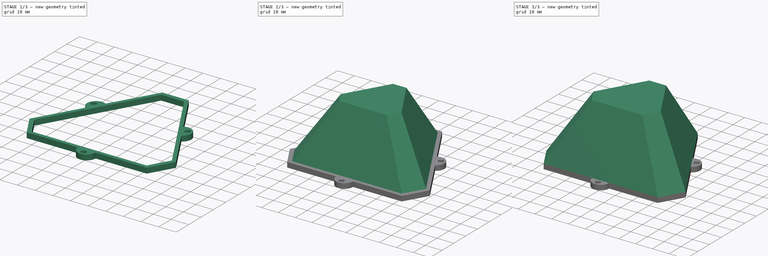
[diagram: build sequence overview — one tinted view per stage of 3, left to right]
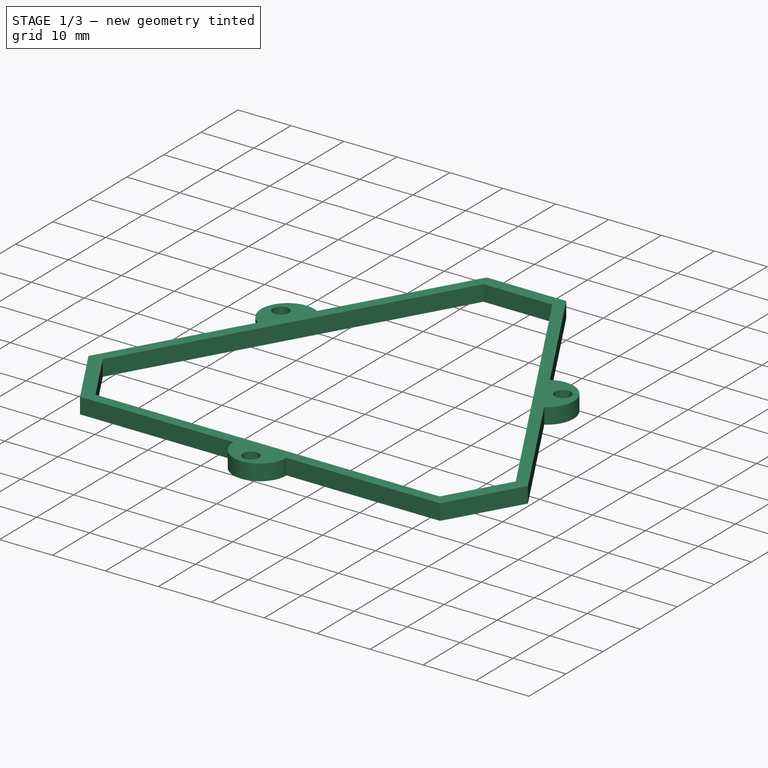
[diagram: stage 1 of 3 — iso view after this stage's code; geometry added in this stage tinted green]
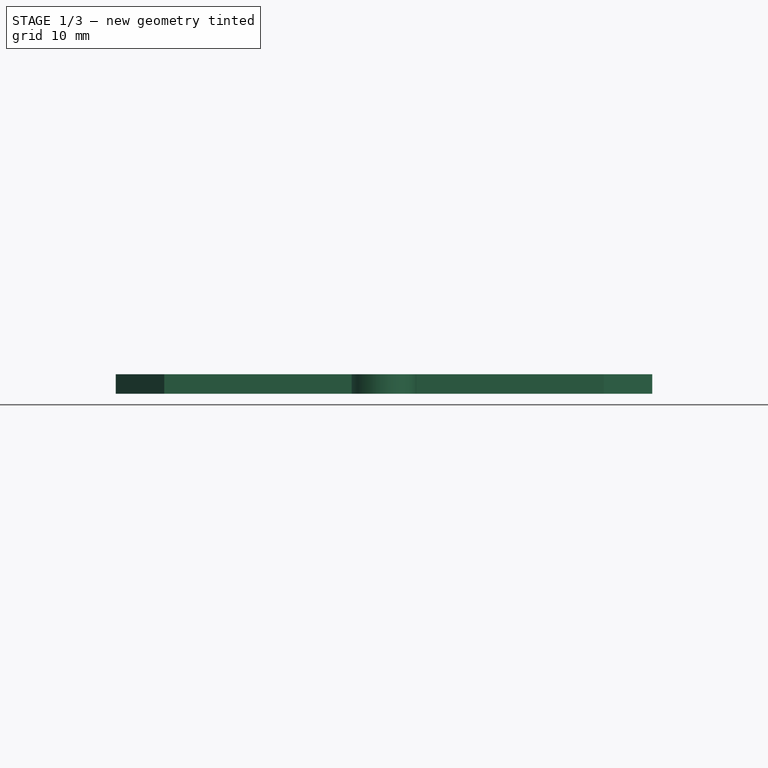
[diagram: stage 1 of 3 — front view after this stage's code; geometry added in this stage tinted green]
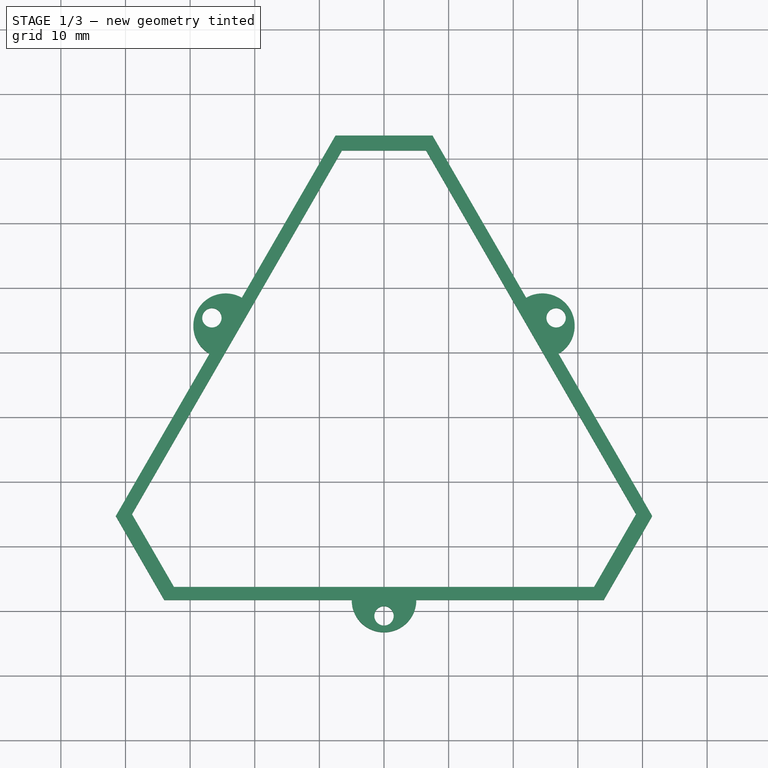
[diagram: stage 1 of 3 — top view after this stage's code; geometry added in this stage tinted green]
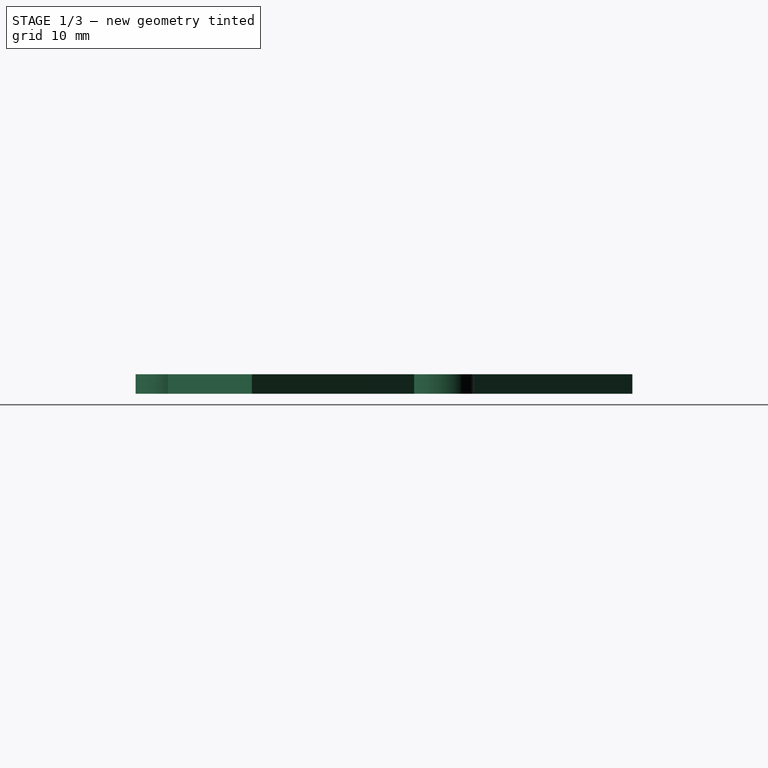
[diagram: stage 1 of 3 — right view after this stage's code; geometry added in this stage tinted green]
FCSTD DOCUMENT
Label: XMP Core
objects: Sketcher::SketchObject×6, Part::Loft×2, Part::Cut×1, PartDesign::Pad×1, PartDesign::Pocket×1
note: 13 computed .brp shape members not serialized (recipe doc carries the construction recipe); baked Part::Feature solids carry a one-line shape summary decoded from their .brp

FEATURE [PartDesign::Pad] Pad
  Length = 3
  Length2 = 100
  Placement = pos=(0,0,0) rot=(1,0,0;3.14159rad)
  Sketch = -> Sketch004
  Type = 0
FEATURE [Sketcher::SketchObject] Sketch005
  Placement = pos=(0,0,-3) rot=(1,0,0;3.14159rad)
  Support = -> Pad [Face20]
  sketch-geometry (6):
    g0: Circle CenterX=0 CenterY=30.75 CenterZ=0 NormalX=0 NormalY=0 NormalZ=1 Radius=1.5
    g1: Circle CenterX=26.6303 CenterY=-15.375 CenterZ=0 NormalX=0 NormalY=0 NormalZ=1 Radius=1.5
    g2: Circle CenterX=-26.6303 CenterY=-15.375 CenterZ=0 NormalX=0 NormalY=0 NormalZ=1 Radius=1.5
    g3: LineSegment [constr] StartX=0 StartY=30.75 StartZ=0 EndX=0 EndY=0 EndZ=0
    g4: LineSegment [constr] StartX=0 StartY=0 StartZ=0 EndX=-26.6303 EndY=-15.375 EndZ=0
    g5: LineSegment [constr] StartX=0 StartY=0 StartZ=0 EndX=26.6303 EndY=-15.375 EndZ=0
  constraints (15):
    c: Equal(g2,g0)
    c: Equal(g0,g1)
    c: Radius(g1) = 1.5
    c: Vertical(g3)
    c: Coincident(g4,g3)
    c: Coincident(g3,g5)
    c: Angle(g3,g4) = 2.0944
    c: Angle(g5,g3) = 2.0944
    c: Equal(g4,g3)
    c: Equal(g4,g5)
    c: Distance(g4) = 30.75
    c: Coincident(g1,g5)
    c: Coincident(g0,g3)
    c: Coincident(g2,g4)
    c: Coincident(g3,g-1)
FEATURE [PartDesign::Pocket] Pocket
  Length = 5
  Placement = pos=(0,0,0) rot=(1,0,0;3.14159rad)
  Sketch = -> Sketch005
  Type = 0
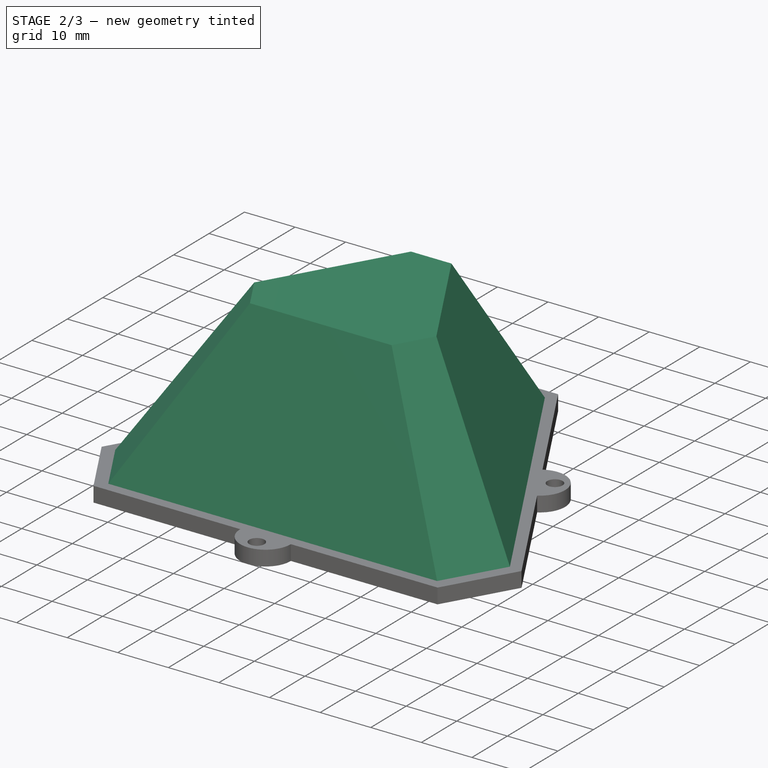
[diagram: stage 2 of 3 — iso view after this stage's code; geometry added in this stage tinted green]
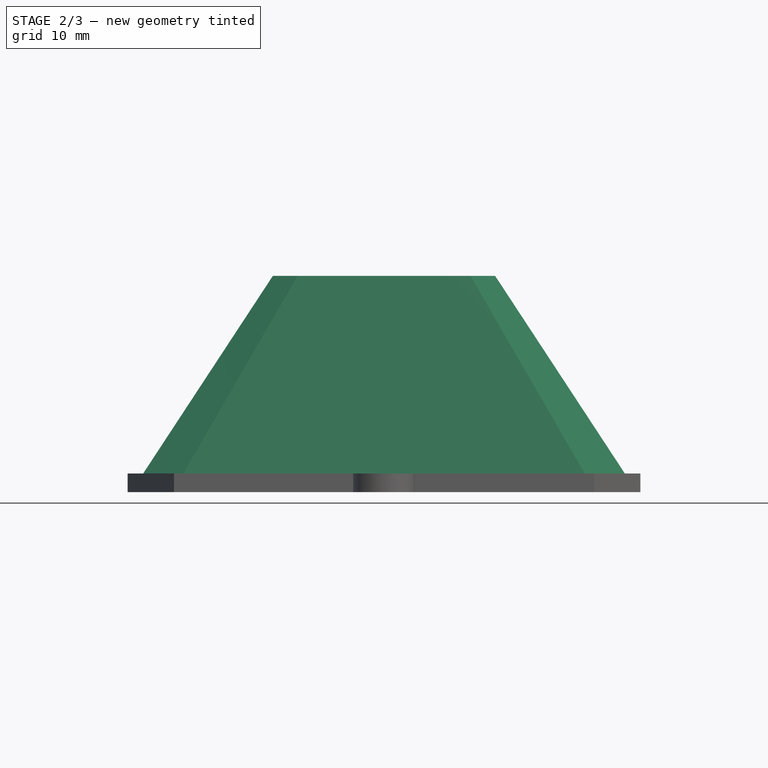
[diagram: stage 2 of 3 — front view after this stage's code; geometry added in this stage tinted green]
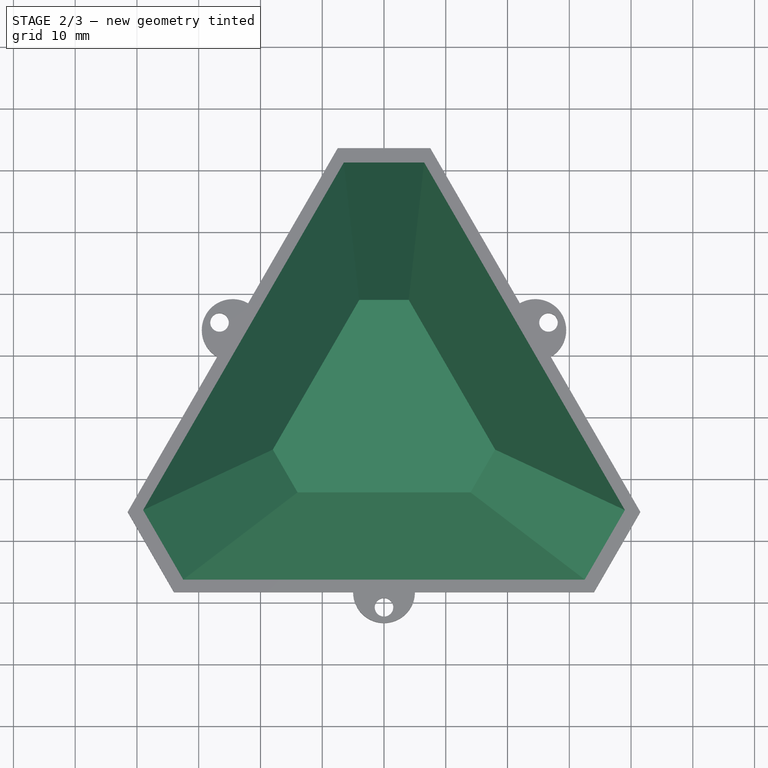
[diagram: stage 2 of 3 — top view after this stage's code; geometry added in this stage tinted green]
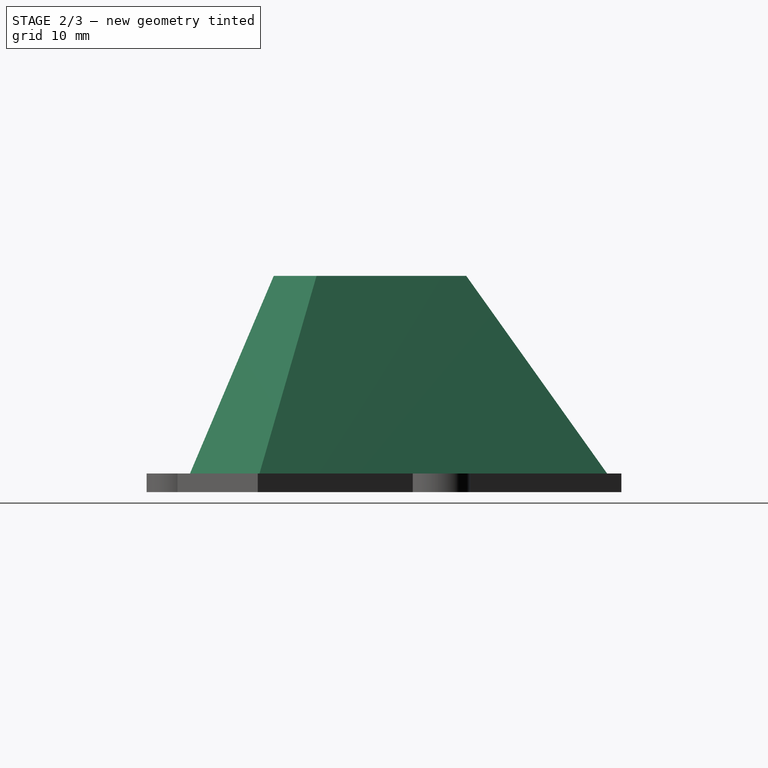
[diagram: stage 2 of 3 — right view after this stage's code; geometry added in this stage tinted green]
FEATURE [Part::Loft] Loft001
  Ruled = false
  Sections = -> [Sketch001,Sketch003]
  Solid = true
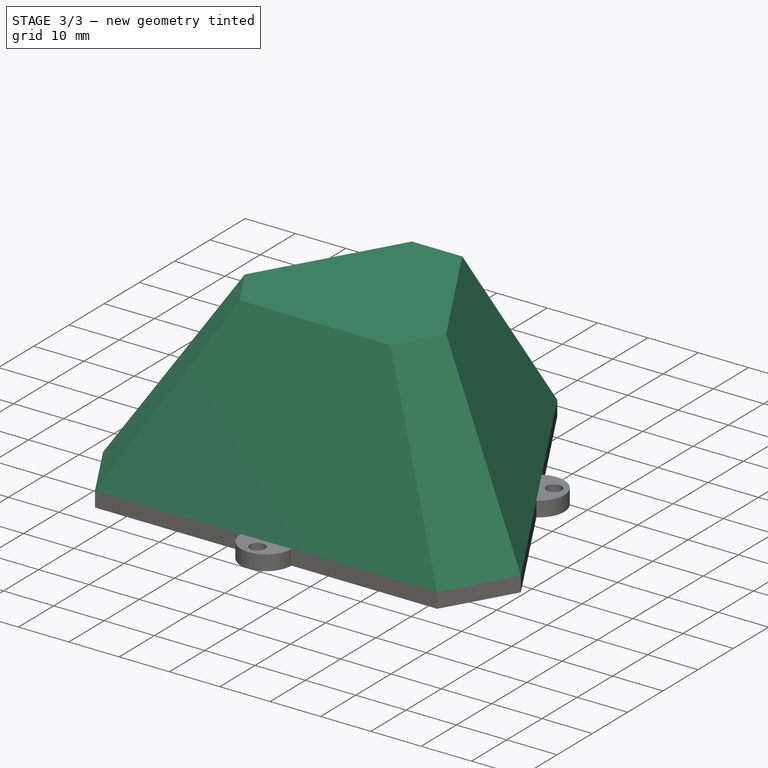
[diagram: stage 3 of 3 — iso view after this stage's code; geometry added in this stage tinted green]
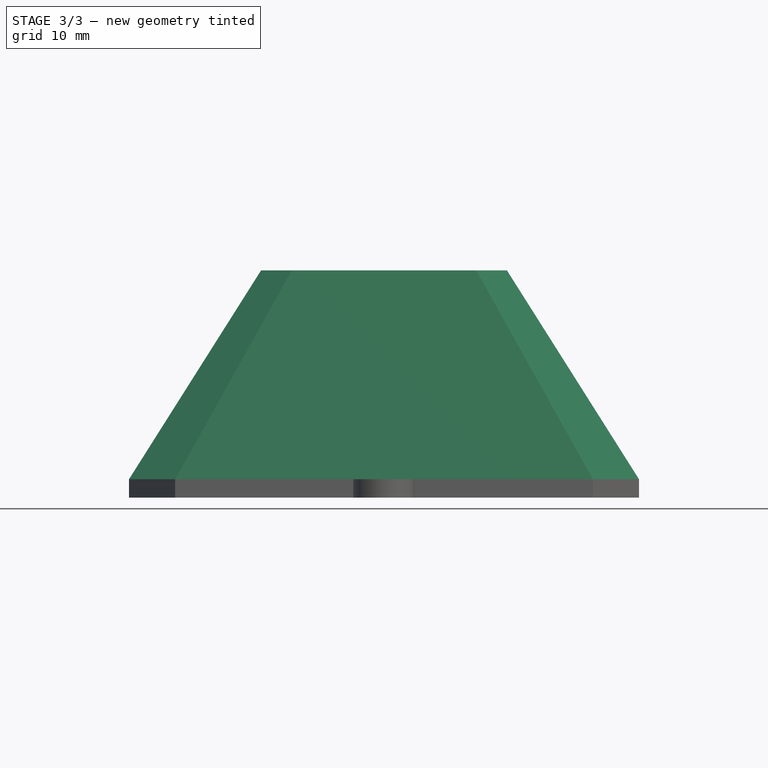
[diagram: stage 3 of 3 — front view after this stage's code; geometry added in this stage tinted green]
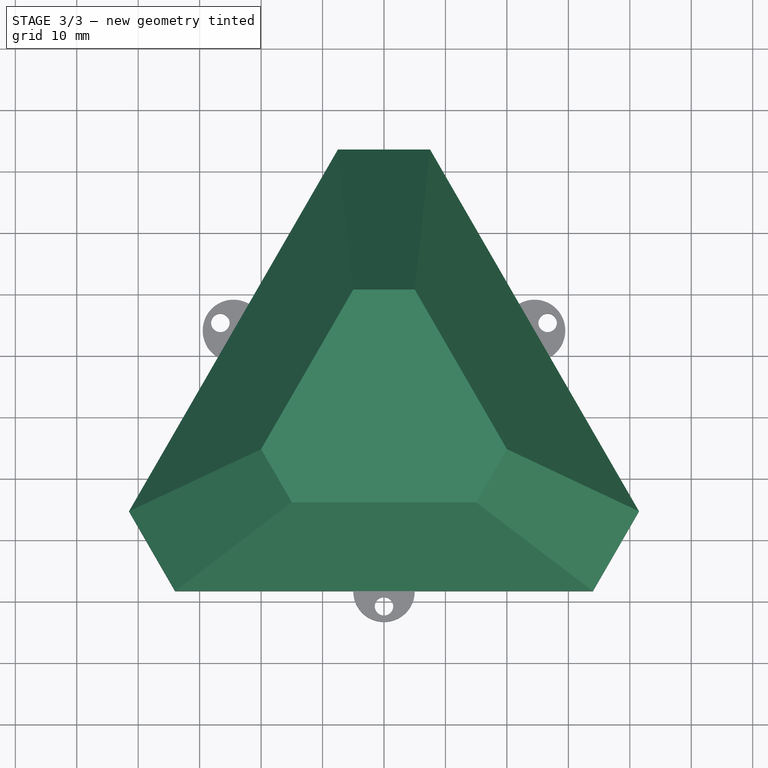
[diagram: stage 3 of 3 — top view after this stage's code; geometry added in this stage tinted green]
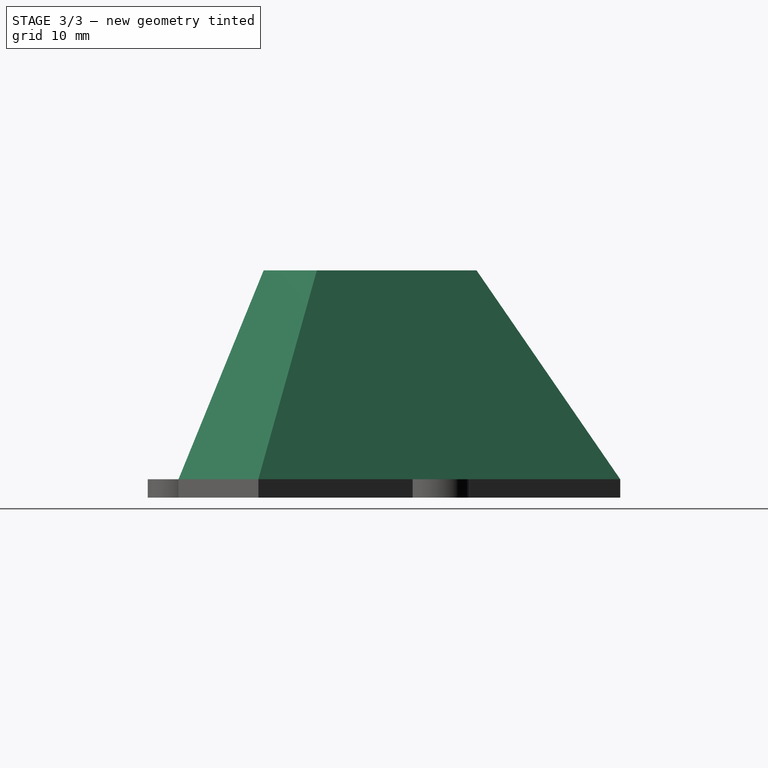
[diagram: stage 3 of 3 — right view after this stage's code; geometry added in this stage tinted green]
FEATURE [Sketcher::SketchObject] Sketch
  sketch-geometry (8):
    g0: LineSegment StartX=-7.49999 StartY=43.5899 StartZ=0 EndX=7.50001 EndY=43.5899 EndZ=0
    g1: LineSegment StartX=7.50001 StartY=43.5899 StartZ=0 EndX=41.5 EndY=-15.2998 EndZ=0
    g2: LineSegment StartX=41.5 StartY=-15.2998 StartZ=0 EndX=34 EndY=-28.2902 EndZ=0
    g3: LineSegment StartX=34 StartY=-28.2902 StartZ=0 EndX=-34 EndY=-28.2902 EndZ=0
    g4: LineSegment StartX=-34 StartY=-28.2902 StartZ=0 EndX=-41.5 EndY=-15.2998 EndZ=0
    g5: LineSegment StartX=-41.5 StartY=-15.2998 StartZ=0 EndX=-7.49999 EndY=43.5899 EndZ=0
    g6: LineSegment [constr] StartX=-24.5 StartY=14.1451 StartZ=0 EndX=37.75 EndY=-21.795 EndZ=0
    g7: LineSegment [constr] StartX=24.5 StartY=14.1451 StartZ=0 EndX=-37.75 EndY=-21.795 EndZ=0
  constraints (24):
    c: Horizontal(g0)
    c: Coincident(g1,g0)
    c: Coincident(g2,g1)
    c: Horizontal(g3)
    c: Coincident(g4,g3)
    c: Coincident(g5,g4)
    c: Coincident(g5,g0)
    c: Coincident(g3,g2)
    c: DistanceX(g3) = -68
    c: Distance(g5) = 68
    c: Distance(g1) = 68
    c: DistanceX(g0) = 15
    c: Distance(g4) = 15
    c: Distance(g2) = 15
    c: Angle(g1,g2) = 2.0944
    c: Angle(g4,g5) = 2.0944
    c: PointOnObject(g7,g1)
    c: PointOnObject(g7,g4)
    c: PointOnObject(g6,g2)
    c: PointOnObject(g6,g5)
    c: Symmetric(g0,g4,g6)
    c: Symmetric(g4,g3,g7)
    c: PointOnObject(g-1,g7)
    c: PointOnObject(g-1,g6)
FEATURE [Sketcher::SketchObject] Sketch001
  sketch-geometry (8):
    g0: LineSegment StartX=-6.5 StartY=41.2805 StartZ=0 EndX=6.5 EndY=41.2805 EndZ=0
    g1: LineSegment StartX=6.5 StartY=41.2805 StartZ=0 EndX=39 EndY=-15.0111 EndZ=0
    g2: LineSegment StartX=39 StartY=-15.0111 StartZ=0 EndX=32.5 EndY=-26.2694 EndZ=0
    g3: LineSegment StartX=32.5 StartY=-26.2694 StartZ=0 EndX=-32.5 EndY=-26.2694 EndZ=0
    g4: LineSegment StartX=-32.5 StartY=-26.2694 StartZ=0 EndX=-39 EndY=-15.0111 EndZ=0
    g5: LineSegment StartX=-39 StartY=-15.0111 StartZ=0 EndX=-6.5 EndY=41.2805 EndZ=0
    g6: LineSegment [constr] StartX=-22.75 StartY=13.1347 StartZ=0 EndX=35.75 EndY=-20.6403 EndZ=0
    g7: LineSegment [constr] StartX=22.75 StartY=13.1347 StartZ=0 EndX=-35.75 EndY=-20.6403 EndZ=0
  constraints (24):
    c: Horizontal(g0)
    c: Coincident(g1,g0)
    c: Coincident(g2,g1)
    c: Horizontal(g3)
    c: Coincident(g4,g3)
    c: Coincident(g5,g4)
    c: Coincident(g5,g0)
    c: DistanceX(g0) = 13
    c: Distance(g4) = 13
    c: Coincident(g2,g3)
    c: Distance(g2) = 13
    c: Distance(g3) = 65
    c: Distance(g1) = 65
    c: Distance(g5) = 65
    c: PointOnObject(g7,g4)
    c: Angle(g4,g5) = 2.0944
    c: Angle(g2,g3) = 2.0944
    c: PointOnObject(g7,g1)
    c: PointOnObject(g6,g2)
    c: PointOnObject(g6,g5)
    c: Symmetric(g0,g4,g6)
    c: Symmetric(g0,g1,g7)
    c: PointOnObject(g-1,g7)
    c: PointOnObject(g-1,g6)
FEATURE [Sketcher::SketchObject] Sketch002
  Placement = pos=(0,0,34) rot=(0,0,1;0rad)
  sketch-geometry (8):
    g0: LineSegment StartX=-5 StartY=20.2073 StartZ=0 EndX=5 EndY=20.2073 EndZ=0
    g1: LineSegment StartX=5 StartY=20.2073 StartZ=0 EndX=20 EndY=-5.7735 EndZ=0
    g2: LineSegment StartX=20 StartY=-5.7735 StartZ=0 EndX=15 EndY=-14.4338 EndZ=0
    g3: LineSegment StartX=15 StartY=-14.4338 StartZ=0 EndX=-15 EndY=-14.4338 EndZ=0
    g4: LineSegment StartX=-15 StartY=-14.4338 StartZ=0 EndX=-20 EndY=-5.7735 EndZ=0
    g5: LineSegment StartX=-20 StartY=-5.7735 StartZ=0 EndX=-5 EndY=20.2073 EndZ=0
    g6: LineSegment [constr] StartX=-12.5 StartY=7.21688 StartZ=0 EndX=17.5 EndY=-10.1036 EndZ=0
    g7: LineSegment [constr] StartX=12.5 StartY=7.21688 StartZ=0 EndX=-17.5 EndY=-10.1036 EndZ=0
  constraints (24):
    c: Horizontal(g0)
    c: Coincident(g1,g0)
    c: Coincident(g2,g1)
    c: Coincident(g3,g2)
    c: Horizontal(g3)
    c: Coincident(g4,g3)
    c: Coincident(g5,g4)
    c: Coincident(g5,g0)
    c: DistanceX(g0) = 10
    c: Distance(g4) = 10
    c: Distance(g2) = 10
    c: Distance(g5) = 30
    c: Distance(g1) = 30
    c: Distance(g3) = 30
    c: Angle(g4,g5) = 2.0944
    c: Angle(g1,g2) = 2.0944
    c: PointOnObject(g7,g1)
    c: PointOnObject(g7,g4)
    c: PointOnObject(g6,g2)
    c: PointOnObject(g6,g5)
    c: Symmetric(g4,g3,g7)
    c: Symmetric(g1,g2,g6)
    c: PointOnObject(g-1,g6)
    c: PointOnObject(g-1,g7)
FEATURE [Sketcher::SketchObject] Sketch003
  Placement = pos=(0,0,32) rot=(0,0,1;0rad)
  sketch-geometry (8):
    g0: LineSegment StartX=-4 StartY=18.4752 StartZ=0 EndX=-18 EndY=-5.7735 EndZ=0
    g1: LineSegment StartX=-18 StartY=-5.7735 StartZ=0 EndX=-14 EndY=-12.7017 EndZ=0
    g2: LineSegment StartX=-14 StartY=-12.7017 StartZ=0 EndX=14 EndY=-12.7017 EndZ=0
    g3: LineSegment StartX=14 StartY=-12.7017 StartZ=0 EndX=18 EndY=-5.7735 EndZ=0
    g4: LineSegment StartX=18 StartY=-5.7735 StartZ=0 EndX=4 EndY=18.4752 EndZ=0
    g5: LineSegment StartX=4 StartY=18.4752 StartZ=0 EndX=-4 EndY=18.4752 EndZ=0
    g6: LineSegment [constr] StartX=-11 StartY=6.35085 StartZ=0 EndX=16 EndY=-9.2376 EndZ=0
    g7: LineSegment [constr] StartX=11 StartY=6.35085 StartZ=0 EndX=-16 EndY=-9.2376 EndZ=0
  constraints (24):
    c: Coincident(g1,g0)
    c: Coincident(g2,g1)
    c: Horizontal(g2)
    c: Coincident(g3,g2)
    c: Coincident(g4,g3)
    c: Coincident(g5,g4)
    c: Coincident(g5,g0)
    c: Horizontal(g5)
    c: Distance(g2) = 28
    c: Distance(g3) = 8
    c: Distance(g1) = 8
    c: Distance(g0) = 28
    c: Distance(g5) = 8
    c: Distance(g4) = 28
    c: Angle(g1,g0) = 2.0944
    c: Angle(g4,g3) = 2.0944
    c: PointOnObject(g7,g4)
    c: PointOnObject(g7,g1)
    c: PointOnObject(g6,g0)
    c: PointOnObject(g6,g3)
    c: Symmetric(g0,g0,g6)
    c: Symmetric(g3,g4,g7)
    c: PointOnObject(g-1,g7)
    c: PointOnObject(g-1,g6)
FEATURE [Part::Loft] Loft
  Ruled = false
  Sections = -> [Sketch,Sketch002]
  Solid = true
FEATURE [Sketcher::SketchObject] Sketch004
  Placement = pos=(0,0,0) rot=(1,0,0;3.14159rad)
  sketch-geometry (25):
    g0: LineSegment StartX=-32.5 StartY=26.2694 StartZ=0 EndX=32.5 EndY=26.2694 EndZ=0
    g1: LineSegment StartX=-6.5 StartY=-41.2805 StartZ=0 EndX=6.5 EndY=-41.2805 EndZ=0
    g2: LineSegment StartX=-32.5 StartY=26.2694 StartZ=0 EndX=-39 EndY=15.0111 EndZ=0
    g3: LineSegment StartX=-39 StartY=15.0111 StartZ=0 EndX=-6.5 EndY=-41.2805 EndZ=0
    g4: LineSegment StartX=6.5 StartY=-41.2805 StartZ=0 EndX=39 EndY=15.0111 EndZ=0
    g5: LineSegment StartX=39 StartY=15.0111 StartZ=0 EndX=32.5 EndY=26.2694 EndZ=0
    g6: LineSegment [constr] StartX=-35.75 StartY=20.6403 StartZ=0 EndX=22.75 EndY=-13.1347 EndZ=0
    g7: LineSegment [constr] StartX=35.75 StartY=20.6403 StartZ=0 EndX=-22.75 EndY=-13.1347 EndZ=0
    g8: LineSegment StartX=-34 StartY=28.2902 StartZ=0 EndX=-41.5 EndY=15.2998 EndZ=0
    g9: LineSegment StartX=-34 StartY=28.2902 StartZ=0 EndX=-5 EndY=28.2902 EndZ=0
    g10: LineSegment StartX=-41.5 StartY=15.2998 StartZ=0 EndX=-27 EndY=-9.81495 EndZ=0
    g11: LineSegment StartX=-22 StartY=-18.4752 StartZ=0 EndX=-7.5 EndY=-43.5899 EndZ=0
    g12: LineSegment StartX=-7.5 StartY=-43.5899 StartZ=0 EndX=7.5 EndY=-43.5899 EndZ=0
    g13: LineSegment StartX=7.5 StartY=-43.5899 StartZ=0 EndX=22 EndY=-18.4752 EndZ=0
    g14: LineSegment StartX=5 StartY=28.2902 StartZ=0 EndX=34 EndY=28.2902 EndZ=0
    g15: LineSegment StartX=34 StartY=28.2902 StartZ=0 EndX=41.5 EndY=15.2998 EndZ=0
    g16: LineSegment StartX=41.5 StartY=15.2998 StartZ=0 EndX=27 EndY=-9.81495 EndZ=0
    g17: LineSegment [constr] StartX=-34 StartY=28.2902 StartZ=0 EndX=34 EndY=28.2902 EndZ=0
    g18: LineSegment [constr] StartX=-41.5 StartY=15.2998 StartZ=0 EndX=-7.5 EndY=-43.5899 EndZ=0
    g19: LineSegment [constr] StartX=41.5 StartY=15.2998 StartZ=0 EndX=7.5 EndY=-43.5899 EndZ=0
    g20: ArcOfCircle CenterX=24.5 CenterY=-14.1451 CenterZ=0 NormalX=0 NormalY=0 NormalZ=1 Radius=5 StartAngle=4.18879 EndAngle=7.33038
    g21: ArcOfCircle CenterX=0 CenterY=28.2902 CenterZ=0 NormalX=0 NormalY=0 NormalZ=1 Radius=5 StartAngle=6.28319 EndAngle=9.42478
    g22: ArcOfCircle CenterX=-24.5 CenterY=-14.1451 CenterZ=0 NormalX=0 NormalY=0 NormalZ=1 Radius=5 StartAngle=2.09439 EndAngle=5.23599
    g23: LineSegment [constr] StartX=-37.75 StartY=21.795 StartZ=0 EndX=24.5 EndY=-14.1451 EndZ=0
    g24: LineSegment [constr] StartX=-24.5 StartY=-14.1451 StartZ=0 EndX=37.75 EndY=21.795 EndZ=0
  constraints (75):
    c: Horizontal(g0)
    c: Horizontal(g1)
    c: Coincident(g0,g5)
    c: Coincident(g4,g5)
    c: Coincident(g1,g4)
    c: Coincident(g3,g1)
    c: Coincident(g3,g2)
    c: Coincident(g2,g0)
    c: DistanceX(g0) = 65
    c: DistanceX(g1) = 13
    c: Distance(g2) = 13
    c: Distance(g3) = 65
    c: Distance(g4) = 65
    c: Distance(g5) = 13
    c: Angle(g5,g4) = 2.0944
    c: Angle(g3,g2) = 2.0944
    c: PointOnObject(g7,g5)
    c: PointOnObject(g7,g3)
    c: PointOnObject(g6,g2)
    c: PointOnObject(g6,g4)
    c: Symmetric(g4,g1,g6)
    c: Symmetric(g1,g2,g7)
    c: PointOnObject(g-1,g7)
    c: Coincident(g9,g8)
    c: Coincident(g10,g8)
    c: Coincident(g12,g11)
    c: Horizontal(g12)
    c: Coincident(g12,g13)
    c: Coincident(g14,g15)
    c: Coincident(g15,g16)
    c: Horizontal(g17)
    c: Coincident(g17,g8)
    c: Coincident(g17,g14)
    c: Coincident(g19,g15)
    c: Coincident(g12,g19)
    c: Coincident(g18,g11)
    c: Coincident(g18,g8)
    c: Coincident(g20,g16)
    c: Coincident(g13,g20)
    c: Equal(g13,g16)
    c: Equal(g14,g16)
    c: Equal(g9,g14)
    c: Equal(g9,g10)
    c: Equal(g10,g11)
    c: PointOnObject(g13,g19)
    c: PointOnObject(g16,g19)
    c: Coincident(g21,g9)
    c: Coincident(g21,g14)
    c: PointOnObject(g9,g17)
    c: PointOnObject(g14,g17)
    c: Angle(g15,g19) = 2.0944
    c: Angle(g18,g8) = 2.0944
    c: Coincident(g22,g10)
    c: Coincident(g11,g22)
    c: PointOnObject(g10,g18)
    c: PointOnObject(g11,g18)
    c: PointOnObject(g23,g8)
    c: PointOnObject(g23,g19)
    c: Symmetric(g8,g8,g23)
    c: PointOnObject(g-1,g23)
    c: Distance(g15) = 15
    c: Distance(g8) = 15
    c: Distance(g12) = 15
    c: Distance(g13,g12) = 29
    c: Equal(g22,g21)
    c: Equal(g20,g21)
    c: Radius(g20) = 5
    c: Distance(g9,g14) = 10
    c: Distance(g10,g11) = 10
    c: Distance(g13,g16) = 10
    c: PointOnObject(g-1,g6)
    c: PointOnObject(g24,g15)
    c: PointOnObject(g24,g18)
    c: Symmetric(g15,g14,g24)
    c: PointOnObject(g-1,g24)
FEATURE [Part::Cut] Cut
  Base = -> Loft
  Tool = -> Loft001
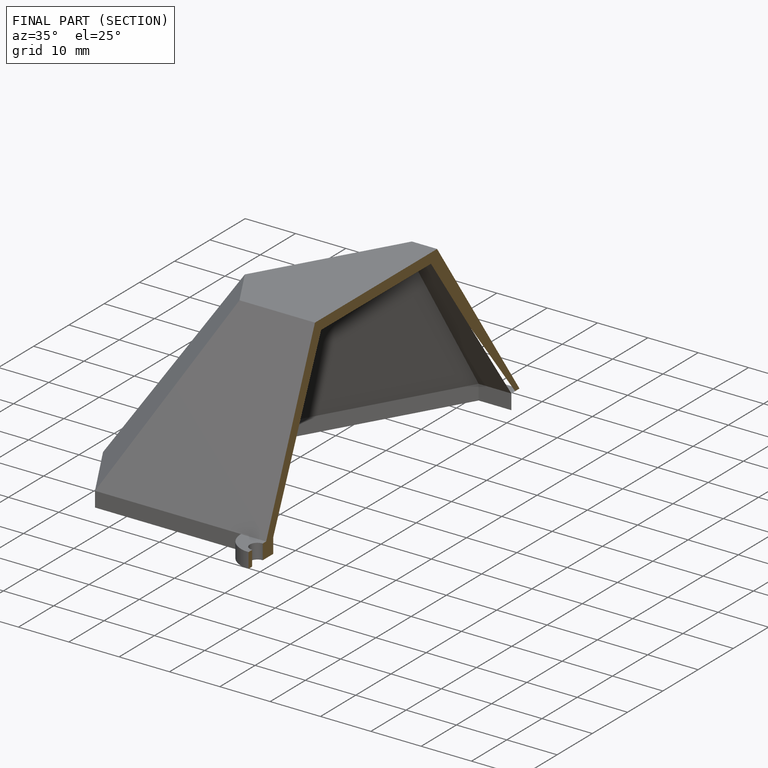
[diagram: finished part — half-section view (interior)]
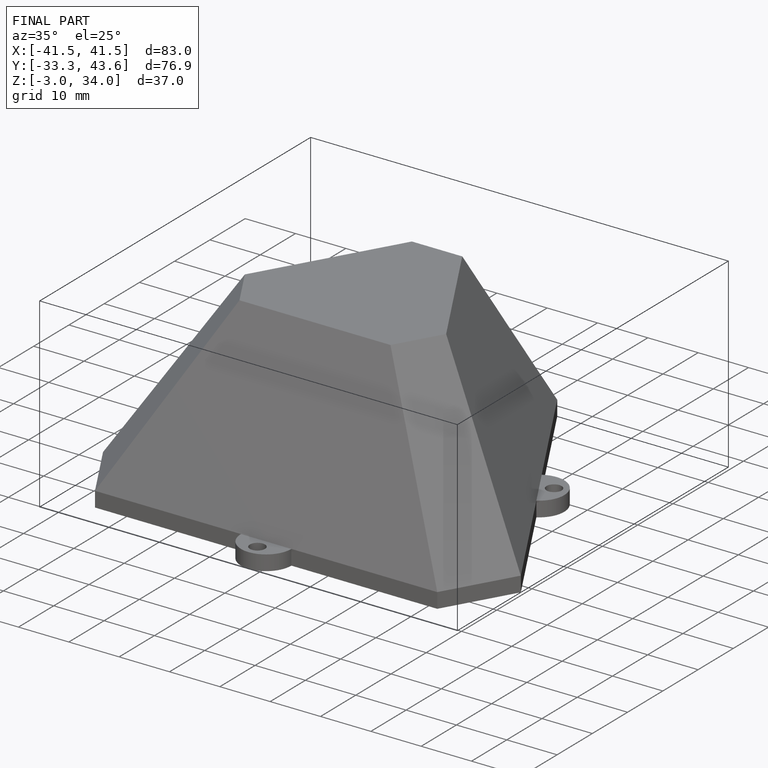
[diagram: finished part — iso view with bounding-box wireframe]
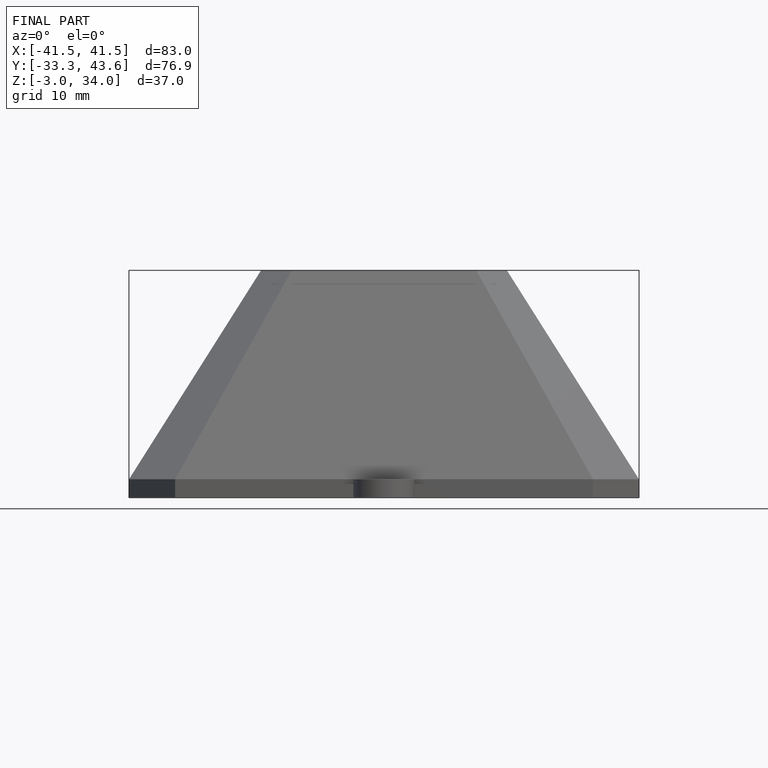
[diagram: finished part — front view with bounding-box wireframe]
